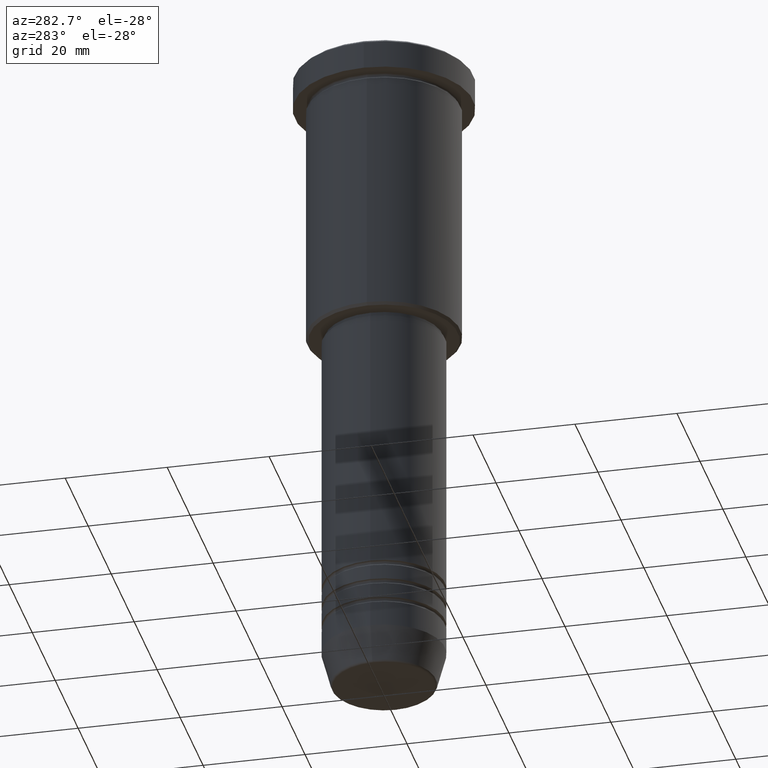
[diagram: clean part render]
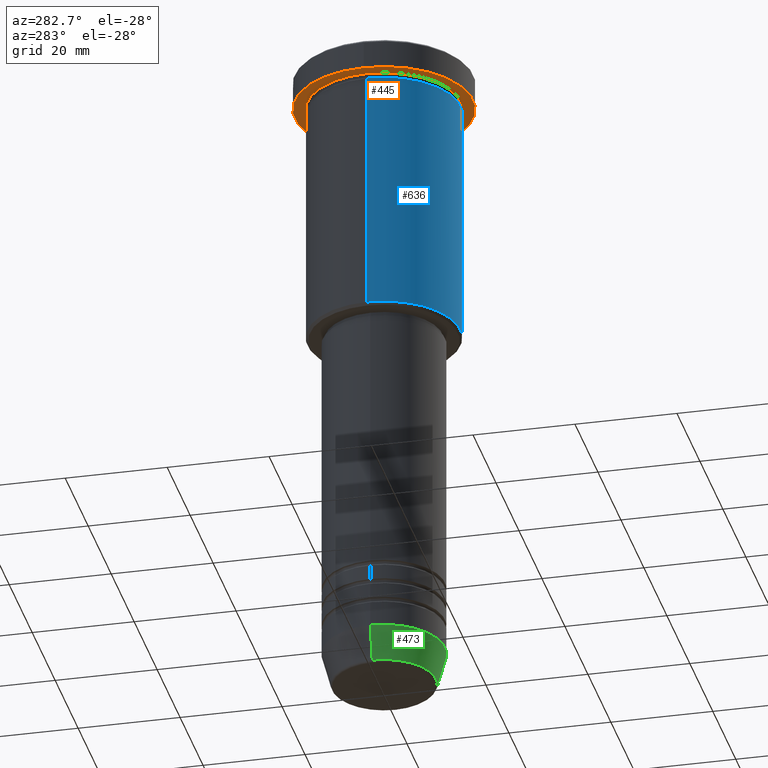
[diagram: same view with three faces highlighted in distinct colors, each labeled with its STEP entity id]
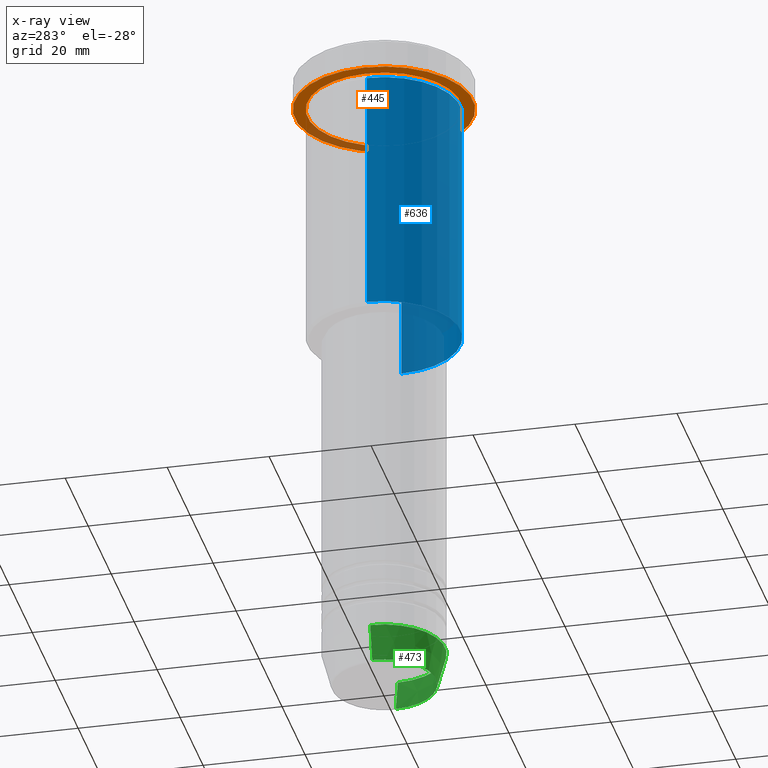
[diagram: x-ray of the same camera — body ghosted, the three highlighted faces saturated]
A machine part, auxiliary view with three faces highlighted in distinct colors.
The next image is the same camera in x-ray (body ghosted, the three faces saturated) — at least one of them is partly hidden behind the body in this view.
Their STEP definitions:

[orange] entity #445 — the highlighted planar face has unit normal (0, 0, -1).
#3 = FACE_OUTER_BOUND ( 'NONE', #723, .T. ) ;
#83 = VERTEX_POINT ( 'NONE', #197 ) ;
#184 = VERTEX_POINT ( 'NONE', #600 ) ;
#197 = CARTESIAN_POINT ( 'NONE',  ( -17.50000000000000000, 2.143131898507868248E-15, -5.999999999999995559 ) ) ;
#215 = AXIS2_PLACEMENT_3D ( 'NONE', #864, #710, #889 ) ;
#272 = CIRCLE ( 'NONE', #215, 15.00000000000000000 ) ;
#277 = CARTESIAN_POINT ( 'NONE',  ( 0.000000000000000000, 0.000000000000000000, -5.999999999999995559 ) ) ;
#308 = CIRCLE ( 'NONE', #573, 15.00000000000000000 ) ;
#354 = DIRECTION ( 'NONE',  ( -0.000000000000000000, -0.000000000000000000, 1.000000000000000000 ) ) ;
#366 = AXIS2_PLACEMENT_3D ( 'NONE', #484, #847, #572 ) ;
#417 = DIRECTION ( 'NONE',  ( -0.000000000000000000, -0.000000000000000000, 1.000000000000000000 ) ) ;
#434 = ORIENTED_EDGE ( 'NONE', *, *, #655, .T. ) ;
#445 = ADVANCED_FACE ( 'NONE', ( #1027, #3 ), #947, .T. ) ;
#469 = EDGE_CURVE ( 'NONE', #83, #184, #857, .T. ) ;
#484 = CARTESIAN_POINT ( 'NONE',  ( 0.000000000000000000, 0.000000000000000000, -5.999999999999995559 ) ) ;
#536 = AXIS2_PLACEMENT_3D ( 'NONE', #277, #354, #557 ) ;
#550 = DIRECTION ( 'NONE',  ( -1.000000000000000000, 0.000000000000000000, -0.000000000000000000 ) ) ;
#557 = DIRECTION ( 'NONE',  ( 1.000000000000000000, 0.000000000000000000, 0.000000000000000000 ) ) ;
#566 = VERTEX_POINT ( 'NONE', #676 ) ;
#572 = DIRECTION ( 'NONE',  ( 1.000000000000000000, 0.000000000000000000, 0.000000000000000000 ) ) ;
#573 = AXIS2_PLACEMENT_3D ( 'NONE', #778, #417, #1149 ) ;
#581 = EDGE_CURVE ( 'NONE', #566, #803, #308, .T. ) ;
#600 = CARTESIAN_POINT ( 'NONE',  ( 17.50000000000000000, 0.000000000000000000, -5.999999999999995559 ) ) ;
#655 = EDGE_CURVE ( 'NONE', #803, #566, #272, .T. ) ;
#676 = CARTESIAN_POINT ( 'NONE',  ( -15.00000000000000000, 0.000000000000000000, -5.999999999999994671 ) ) ;
#707 = ORIENTED_EDGE ( 'NONE', *, *, #581, .T. ) ;
#710 = DIRECTION ( 'NONE',  ( -0.000000000000000000, -0.000000000000000000, 1.000000000000000000 ) ) ;
#715 = CARTESIAN_POINT ( 'NONE',  ( 15.00000000000000000, 1.836970198721029589E-15, -5.999999999999994671 ) ) ;
#723 = EDGE_LOOP ( 'NONE', ( #912, #998 ) ) ;
#778 = CARTESIAN_POINT ( 'NONE',  ( 0.000000000000000000, 0.000000000000000000, -5.999999999999995559 ) ) ;
#803 = VERTEX_POINT ( 'NONE', #715 ) ;
#806 = EDGE_CURVE ( 'NONE', #184, #83, #1150, .T. ) ;
#840 = DIRECTION ( 'NONE',  ( 0.000000000000000000, 0.000000000000000000, -1.000000000000000000 ) ) ;
#847 = DIRECTION ( 'NONE',  ( -0.000000000000000000, -0.000000000000000000, 1.000000000000000000 ) ) ;
#850 = EDGE_LOOP ( 'NONE', ( #707, #434 ) ) ;
#857 = CIRCLE ( 'NONE', #366, 17.50000000000000000 ) ;
#864 = CARTESIAN_POINT ( 'NONE',  ( 0.000000000000000000, 0.000000000000000000, -5.999999999999995559 ) ) ;
#889 = DIRECTION ( 'NONE',  ( -1.000000000000000000, 0.000000000000000000, 0.000000000000000000 ) ) ;
#897 = AXIS2_PLACEMENT_3D ( 'NONE', #911, #840, #550 ) ;
#911 = CARTESIAN_POINT ( 'NONE',  ( 0.000000000000000000, 17.50000000000000000, -5.999999999999995559 ) ) ;
#912 = ORIENTED_EDGE ( 'NONE', *, *, #806, .F. ) ;
#947 = PLANE ( 'NONE',  #897 ) ;
#998 = ORIENTED_EDGE ( 'NONE', *, *, #469, .F. ) ;
#1027 = FACE_BOUND ( 'NONE', #850, .T. ) ;
#1149 = DIRECTION ( 'NONE',  ( -1.000000000000000000, 0.000000000000000000, 0.000000000000000000 ) ) ;
#1150 = CIRCLE ( 'NONE', #536, 17.50000000000000000 ) ;

[blue] entity #636 — the highlighted cylindrical surface (partial cylindrical patch) has radius 15 mm, axis along (-0, -0, 1).
#13 = DIRECTION ( 'NONE',  ( -0.000000000000000000, -0.000000000000000000, 1.000000000000000000 ) ) ;
#65 = LINE ( 'NONE', #526, #781 ) ;
#82 = DIRECTION ( 'NONE',  ( 1.000000000000000000, 0.000000000000000000, 0.000000000000000000 ) ) ;
#153 = AXIS2_PLACEMENT_3D ( 'NONE', #269, #13, #257 ) ;
#220 = CARTESIAN_POINT ( 'NONE',  ( 15.00000000000000000, 0.000000000000000000, -6.999999999999995559 ) ) ;
#232 = CARTESIAN_POINT ( 'NONE',  ( 15.00000000000000000, 0.000000000000000000, -55.49999999999997868 ) ) ;
#257 = DIRECTION ( 'NONE',  ( -1.000000000000000000, 0.000000000000000000, 0.000000000000000000 ) ) ;
#263 = VERTEX_POINT ( 'NONE', #220 ) ;
#269 = CARTESIAN_POINT ( 'NONE',  ( 0.000000000000000000, 0.000000000000000000, -55.49999999999997868 ) ) ;
#319 = LINE ( 'NONE', #1133, #1091 ) ;
#336 = CYLINDRICAL_SURFACE ( 'NONE', #478, 15.00000000000000000 ) ;
#341 = DIRECTION ( 'NONE',  ( 1.000000000000000000, 0.000000000000000000, 0.000000000000000000 ) ) ;
#342 = EDGE_CURVE ( 'NONE', #1179, #263, #401, .T. ) ;
#401 = CIRCLE ( 'NONE', #1013, 15.00000000000000000 ) ;
#431 = DIRECTION ( 'NONE',  ( -0.000000000000000000, -0.000000000000000000, 1.000000000000000000 ) ) ;
#478 = AXIS2_PLACEMENT_3D ( 'NONE', #1163, #431, #341 ) ;
#483 = CARTESIAN_POINT ( 'NONE',  ( -15.00000000000000000, 1.836970198721029589E-15, -55.49999999999997868 ) ) ;
#526 = CARTESIAN_POINT ( 'NONE',  ( -15.00000000000000000, 1.836970198721029589E-15, 0.000000000000000000 ) ) ;
#553 = EDGE_CURVE ( 'NONE', #1152, #263, #319, .T. ) ;
#632 = CIRCLE ( 'NONE', #153, 15.00000000000000000 ) ;
#636 = ADVANCED_FACE ( 'NONE', ( #869 ), #336, .T. ) ;
#637 = CARTESIAN_POINT ( 'NONE',  ( 0.000000000000000000, 0.000000000000000000, -6.999999999999995559 ) ) ;
#642 = EDGE_CURVE ( 'NONE', #945, #1179, #65, .T. ) ;
#662 = DIRECTION ( 'NONE',  ( -0.000000000000000000, -0.000000000000000000, 1.000000000000000000 ) ) ;
#781 = VECTOR ( 'NONE', #786, 1000.000000000000000 ) ;
#786 = DIRECTION ( 'NONE',  ( -0.000000000000000000, -0.000000000000000000, 1.000000000000000000 ) ) ;
#829 = EDGE_CURVE ( 'NONE', #945, #1152, #632, .T. ) ;
#869 = FACE_OUTER_BOUND ( 'NONE', #1117, .T. ) ;
#882 = ORIENTED_EDGE ( 'NONE', *, *, #342, .F. ) ;
#886 = DIRECTION ( 'NONE',  ( -0.000000000000000000, -0.000000000000000000, 1.000000000000000000 ) ) ;
#923 = ORIENTED_EDGE ( 'NONE', *, *, #829, .T. ) ;
#945 = VERTEX_POINT ( 'NONE', #483 ) ;
#1013 = AXIS2_PLACEMENT_3D ( 'NONE', #637, #886, #82 ) ;
#1091 = VECTOR ( 'NONE', #662, 1000.000000000000000 ) ;
#1101 = CARTESIAN_POINT ( 'NONE',  ( -15.00000000000000000, 1.836970198721029589E-15, -6.999999999999995559 ) ) ;
#1102 = ORIENTED_EDGE ( 'NONE', *, *, #642, .F. ) ;
#1117 = EDGE_LOOP ( 'NONE', ( #1102, #923, #1157, #882 ) ) ;
#1133 = CARTESIAN_POINT ( 'NONE',  ( 15.00000000000000000, 0.000000000000000000, 0.000000000000000000 ) ) ;
#1152 = VERTEX_POINT ( 'NONE', #232 ) ;
#1157 = ORIENTED_EDGE ( 'NONE', *, *, #553, .T. ) ;
#1163 = CARTESIAN_POINT ( 'NONE',  ( 0.000000000000000000, 0.000000000000000000, 0.000000000000000000 ) ) ;
#1179 = VERTEX_POINT ( 'NONE', #1101 ) ;

[green] entity #473 — the highlighted conical surface has half-angle 15 deg.
#5 = ORIENTED_EDGE ( 'NONE', *, *, #677, .T. ) ;
#29 = CARTESIAN_POINT ( 'NONE',  ( -10.22365507213718949, 1.360806402472382744E-15, -130.6294095225512422 ) ) ;
#30 = DIRECTION ( 'NONE',  ( -0.000000000000000000, -0.000000000000000000, 1.000000000000000000 ) ) ;
#43 = DIRECTION ( 'NONE',  ( 1.000000000000000000, 0.000000000000000000, 0.000000000000000000 ) ) ;
#46 = EDGE_LOOP ( 'NONE', ( #1002, #907, #5, #767 ) ) ;
#53 = CARTESIAN_POINT ( 'NONE',  ( 12.00000000000000000, 0.000000000000000000, -124.0000000000000000 ) ) ;
#97 = EDGE_CURVE ( 'NONE', #887, #784, #188, .T. ) ;
#142 = LINE ( 'NONE', #53, #231 ) ;
#173 = CONICAL_SURFACE ( 'NONE', #837, 12.00000000000000000, 0.2617993877991500740 ) ;
#186 = DIRECTION ( 'NONE',  ( -0.000000000000000000, -0.000000000000000000, 1.000000000000000000 ) ) ;
#188 = LINE ( 'NONE', #551, #495 ) ;
#226 = CARTESIAN_POINT ( 'NONE',  ( 0.000000000000000000, 0.000000000000000000, -124.0000000000000000 ) ) ;
#229 = CIRCLE ( 'NONE', #1033, 10.22365507213718949 ) ;
#231 = VECTOR ( 'NONE', #1063, 1000.000000000000000 ) ;
#256 = VERTEX_POINT ( 'NONE', #757 ) ;
#374 = CARTESIAN_POINT ( 'NONE',  ( 0.000000000000000000, 0.000000000000000000, -124.0000000000000000 ) ) ;
#408 = EDGE_CURVE ( 'NONE', #887, #256, #229, .T. ) ;
#427 = CARTESIAN_POINT ( 'NONE',  ( 0.000000000000000000, 0.000000000000000000, -130.6294095225512422 ) ) ;
#443 = CARTESIAN_POINT ( 'NONE',  ( -12.00000000000000000, 1.469576158976823947E-15, -124.0000000000000000 ) ) ;
#456 = FACE_OUTER_BOUND ( 'NONE', #46, .T. ) ;
#473 = ADVANCED_FACE ( 'NONE', ( #456 ), #173, .T. ) ;
#495 = VECTOR ( 'NONE', #918, 1000.000000000000000 ) ;
#531 = DIRECTION ( 'NONE',  ( 1.000000000000000000, 0.000000000000000000, 0.000000000000000000 ) ) ;
#551 = CARTESIAN_POINT ( 'NONE',  ( -12.00000000000000000, 1.469576158976823947E-15, -124.0000000000000000 ) ) ;
#677 = EDGE_CURVE ( 'NONE', #256, #1170, #142, .T. ) ;
#697 = CARTESIAN_POINT ( 'NONE',  ( 12.00000000000000000, 0.000000000000000000, -124.0000000000000000 ) ) ;
#726 = CIRCLE ( 'NONE', #920, 12.00000000000000000 ) ;
#738 = EDGE_CURVE ( 'NONE', #784, #1170, #726, .T. ) ;
#757 = CARTESIAN_POINT ( 'NONE',  ( 10.22365507213718949, 0.000000000000000000, -130.6294095225512422 ) ) ;
#767 = ORIENTED_EDGE ( 'NONE', *, *, #738, .F. ) ;
#784 = VERTEX_POINT ( 'NONE', #443 ) ;
#837 = AXIS2_PLACEMENT_3D ( 'NONE', #226, #30, #43 ) ;
#887 = VERTEX_POINT ( 'NONE', #29 ) ;
#907 = ORIENTED_EDGE ( 'NONE', *, *, #408, .T. ) ;
#918 = DIRECTION ( 'NONE',  ( -0.2588190451025213501, 3.169619151431772337E-17, 0.9659258262890680902 ) ) ;
#920 = AXIS2_PLACEMENT_3D ( 'NONE', #374, #186, #531 ) ;
#1002 = ORIENTED_EDGE ( 'NONE', *, *, #97, .F. ) ;
#1033 = AXIS2_PLACEMENT_3D ( 'NONE', #427, #1078, #1156 ) ;
#1063 = DIRECTION ( 'NONE',  ( 0.2588190451025213501, 0.000000000000000000, 0.9659258262890680902 ) ) ;
#1078 = DIRECTION ( 'NONE',  ( -0.000000000000000000, -0.000000000000000000, 1.000000000000000000 ) ) ;
#1156 = DIRECTION ( 'NONE',  ( 1.000000000000000000, 0.000000000000000000, 0.000000000000000000 ) ) ;
#1170 = VERTEX_POINT ( 'NONE', #697 ) ;